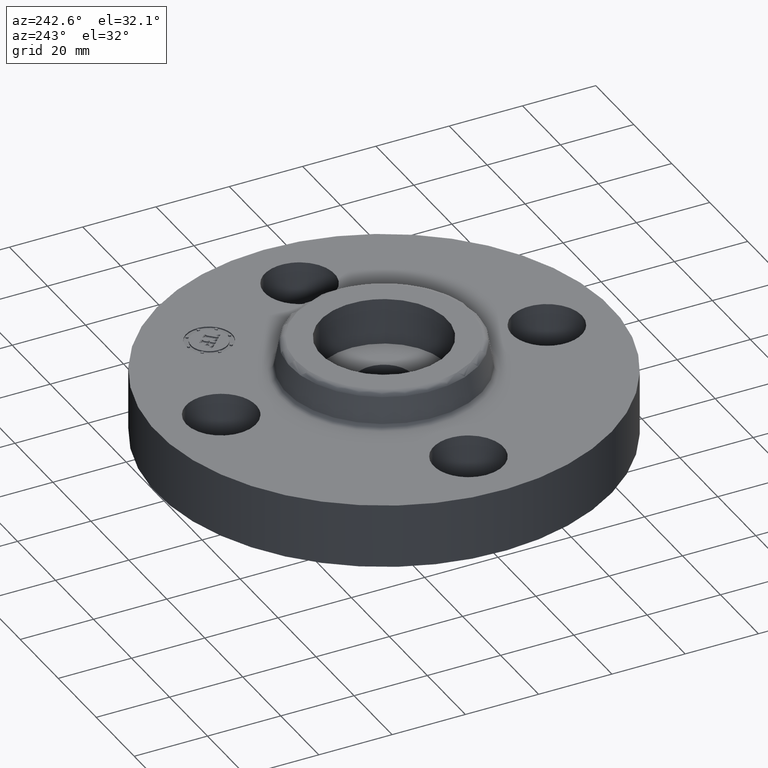
[diagram: clean part render]
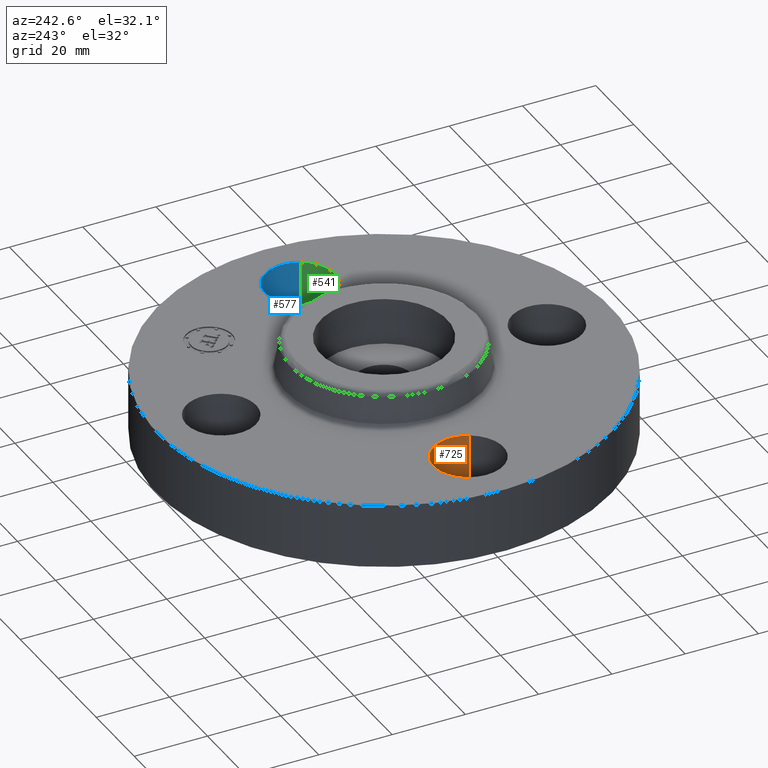
[diagram: same view with three faces highlighted in distinct colors, each labeled with its STEP entity id]
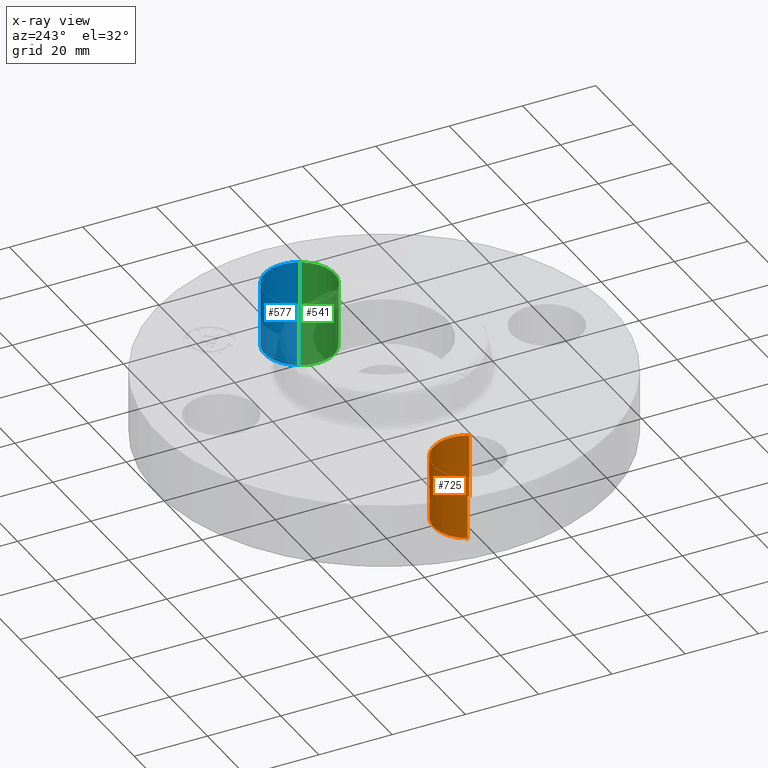
[diagram: x-ray of the same camera — body ghosted, the three highlighted faces saturated]
A machine part, auxiliary view with three faces highlighted in distinct colors.
The next image is the same camera in x-ray (body ghosted, the three faces saturated) — at least one of them is partly hidden behind the body in this view.
Their STEP definitions:

[orange] entity #725 — the highlighted cylindrical surface (partial cylindrical patch) has radius 9.525 mm, axis along (0, -0, -1).
#342=AXIS2_PLACEMENT_3D('Circle Axis2P3D',#340,#341,$) ;
#700=AXIS2_PLACEMENT_3D('Cylinder Axis2P3D',#697,#698,#699) ;
#335=CARTESIAN_POINT('Vertex',(-1.42090653927,-0.179784576983,0.)) ;
#337=CARTESIAN_POINT('Vertex',(-2.07909346074,0.179784576964,0.)) ;
#340=CARTESIAN_POINT('Axis2P3D Location',(-1.75000000001,-2.22543593352E-011,0.)) ;
#664=CARTESIAN_POINT('Line Origine',(-1.4209065393,-0.179784576978,0.344999999978)) ;
#668=CARTESIAN_POINT('Vertex',(-1.42090653927,-0.179784576955,0.690000000003)) ;
#671=CARTESIAN_POINT('Line Origine',(-2.07909346072,0.179784576978,0.344999999978)) ;
#675=CARTESIAN_POINT('Vertex',(-2.07909346072,0.179784576978,0.689999999988)) ;
#697=CARTESIAN_POINT('Axis2P3D Location',(-1.75000000001,-2.14313189852E-016,0.686062992129)) ;
#703=CARTESIAN_POINT('Control Point',(-2.07909346072,0.179784576978,0.690000000003)) ;
#704=CARTESIAN_POINT('Control Point',(-2.05085296541,0.231478456903,0.690000000002)) ;
#705=CARTESIAN_POINT('Control Point',(-2.01246240051,0.277627328541,0.690000000002)) ;
#706=CARTESIAN_POINT('Control Point',(-1.96536533168,0.315564920646,0.690000000001)) ;
#707=CARTESIAN_POINT('Control Point',(-1.85883359426,0.370929207244,0.689999999999)) ;
#708=CARTESIAN_POINT('Control Point',(-1.73927677655,0.381901109851,0.689999999998)) ;
#709=CARTESIAN_POINT('Control Point',(-1.67914819117,0.375424381749,0.689999999997)) ;
#710=CARTESIAN_POINT('Control Point',(-1.56467041474,0.339243530299,0.689999999996)) ;
#711=CARTESIAN_POINT('Control Point',(-1.47237267147,0.262462400496,0.689999999994)) ;
#712=CARTESIAN_POINT('Control Point',(-1.43443507936,0.215365331668,0.689999999993)) ;
#713=CARTESIAN_POINT('Control Point',(-1.37907079277,0.108833594252,0.689999999992)) ;
#714=CARTESIAN_POINT('Control Point',(-1.36809889016,-0.0107232234563,0.689999999991)) ;
#715=CARTESIAN_POINT('Control Point',(-1.37457561826,-0.070851808838,0.68999999999)) ;
#716=CARTESIAN_POINT('Control Point',(-1.39266604399,-0.128090697052,0.689999999989)) ;
#717=CARTESIAN_POINT('Control Point',(-1.4209065393,-0.179784576977,0.689999999988)) ;
#341=DIRECTION('Axis2P3D Direction',(0.,0.,-0.0393700787402)) ;
#665=DIRECTION('Vector Direction',(0.,0.,-0.0393700787402)) ;
#672=DIRECTION('Vector Direction',(0.,0.,-0.0393700787402)) ;
#698=DIRECTION('Axis2P3D Direction',(0.,-0.,-0.0393700787402)) ;
#699=DIRECTION('Axis2P3D XDirection',(-0.0345504945626,0.0188750212049,0.)) ;
#666=VECTOR('Line Direction',#665,0.0393700787402) ;
#673=VECTOR('Line Direction',#672,0.0393700787402) ;
#720=ORIENTED_EDGE('',*,*,#677,.F.) ;
#721=ORIENTED_EDGE('',*,*,#344,.T.) ;
#722=ORIENTED_EDGE('',*,*,#670,.T.) ;
#723=ORIENTED_EDGE('',*,*,#718,.F.) ;
#725=ADVANCED_FACE('PartBody',(#724),#701,.F.) ;
#702=B_SPLINE_CURVE_WITH_KNOTS('',5,(#703,#704,#705,#706,#707,#708,#709,#710,#711,#712,#713,#714,#715,#716,#717),.UNSPECIFIED.,.F.,.U.,(6,3,3,3,6),(-14.9618350128,-7.4809175064,0.,7.4809175064,14.9618350128),.UNSPECIFIED.) ;
#343=CIRCLE('generated circle',#342,0.375000000021) ;
#701=CYLINDRICAL_SURFACE('generated cylinder',#700,0.375000000002) ;
#344=EDGE_CURVE('',#338,#336,#343,.T.) ;
#670=EDGE_CURVE('',#336,#669,#667,.F.) ;
#677=EDGE_CURVE('',#338,#676,#674,.F.) ;
#718=EDGE_CURVE('',#676,#669,#702,.T.) ;
#719=EDGE_LOOP('',(#720,#721,#722,#723)) ;
#724=FACE_OUTER_BOUND('',#719,.T.) ;
#667=LINE('Line',#664,#666) ;
#674=LINE('Line',#671,#673) ;
#336=VERTEX_POINT('',#335) ;
#338=VERTEX_POINT('',#337) ;
#669=VERTEX_POINT('',#668) ;
#676=VERTEX_POINT('',#675) ;

[blue] entity #577 — the highlighted cylindrical surface (partial cylindrical patch) has radius 9.525 mm, axis along (0, -0, -1).
#302=AXIS2_PLACEMENT_3D('Circle Axis2P3D',#300,#301,$) ;
#552=AXIS2_PLACEMENT_3D('Cylinder Axis2P3D',#549,#550,#551) ;
#295=CARTESIAN_POINT('Vertex',(2.07909346074,-0.179784576983,0.)) ;
#297=CARTESIAN_POINT('Vertex',(1.42090653927,0.179784576964,0.)) ;
#300=CARTESIAN_POINT('Axis2P3D Location',(1.75,-2.22543593352E-011,0.)) ;
#516=CARTESIAN_POINT('Line Origine',(2.07909346072,-0.179784576977,0.344999999978)) ;
#520=CARTESIAN_POINT('Vertex',(2.07909346074,-0.179784576955,0.690000000003)) ;
#523=CARTESIAN_POINT('Line Origine',(1.4209065393,0.179784576977,0.344999999978)) ;
#527=CARTESIAN_POINT('Vertex',(1.4209065393,0.179784576977,0.689999999988)) ;
#549=CARTESIAN_POINT('Axis2P3D Location',(1.75000000001,0.,0.686062992129)) ;
#555=CARTESIAN_POINT('Control Point',(1.4209065393,0.179784576977,0.690000000003)) ;
#556=CARTESIAN_POINT('Control Point',(1.44914703461,0.231478456903,0.690000000002)) ;
#557=CARTESIAN_POINT('Control Point',(1.48753759951,0.27762732854,0.690000000002)) ;
#558=CARTESIAN_POINT('Control Point',(1.53463466834,0.315564920645,0.690000000001)) ;
#559=CARTESIAN_POINT('Control Point',(1.64116640576,0.370929207243,0.689999999999)) ;
#560=CARTESIAN_POINT('Control Point',(1.76072322347,0.38190110985,0.689999999998)) ;
#561=CARTESIAN_POINT('Control Point',(1.82085180885,0.375424381748,0.689999999997)) ;
#562=CARTESIAN_POINT('Control Point',(1.93532958528,0.339243530298,0.689999999996)) ;
#563=CARTESIAN_POINT('Control Point',(2.02762732855,0.262462400496,0.689999999994)) ;
#564=CARTESIAN_POINT('Control Point',(2.06556492066,0.215365331668,0.689999999993)) ;
#565=CARTESIAN_POINT('Control Point',(2.12092920725,0.108833594252,0.689999999992)) ;
#566=CARTESIAN_POINT('Control Point',(2.13190110986,-0.0107232234562,0.689999999991)) ;
#567=CARTESIAN_POINT('Control Point',(2.12542438176,-0.0708518088378,0.68999999999)) ;
#568=CARTESIAN_POINT('Control Point',(2.10733395603,-0.128090697051,0.689999999989)) ;
#569=CARTESIAN_POINT('Control Point',(2.07909346072,-0.179784576977,0.689999999988)) ;
#301=DIRECTION('Axis2P3D Direction',(0.,0.,-0.0393700787402)) ;
#517=DIRECTION('Vector Direction',(0.,0.,-0.0393700787402)) ;
#524=DIRECTION('Vector Direction',(0.,0.,-0.0393700787402)) ;
#550=DIRECTION('Axis2P3D Direction',(0.,-0.,-0.0393700787402)) ;
#551=DIRECTION('Axis2P3D XDirection',(-0.0345504945626,0.0188750212049,0.)) ;
#518=VECTOR('Line Direction',#517,0.0393700787402) ;
#525=VECTOR('Line Direction',#524,0.0393700787402) ;
#572=ORIENTED_EDGE('',*,*,#529,.F.) ;
#573=ORIENTED_EDGE('',*,*,#304,.T.) ;
#574=ORIENTED_EDGE('',*,*,#522,.T.) ;
#575=ORIENTED_EDGE('',*,*,#570,.F.) ;
#577=ADVANCED_FACE('PartBody',(#576),#553,.F.) ;
#554=B_SPLINE_CURVE_WITH_KNOTS('',5,(#555,#556,#557,#558,#559,#560,#561,#562,#563,#564,#565,#566,#567,#568,#569),.UNSPECIFIED.,.F.,.U.,(6,3,3,3,6),(-14.9618350128,-7.48091750638,0.,7.48091750638,14.9618350128),.UNSPECIFIED.) ;
#303=CIRCLE('generated circle',#302,0.375000000021) ;
#553=CYLINDRICAL_SURFACE('generated cylinder',#552,0.375000000001) ;
#304=EDGE_CURVE('',#298,#296,#303,.T.) ;
#522=EDGE_CURVE('',#296,#521,#519,.F.) ;
#529=EDGE_CURVE('',#298,#528,#526,.F.) ;
#570=EDGE_CURVE('',#528,#521,#554,.T.) ;
#571=EDGE_LOOP('',(#572,#573,#574,#575)) ;
#576=FACE_OUTER_BOUND('',#571,.T.) ;
#519=LINE('Line',#516,#518) ;
#526=LINE('Line',#523,#525) ;
#296=VERTEX_POINT('',#295) ;
#298=VERTEX_POINT('',#297) ;
#521=VERTEX_POINT('',#520) ;
#528=VERTEX_POINT('',#527) ;

[green] entity #541 — the highlighted cylindrical surface (partial cylindrical patch) has radius 9.525 mm, axis along (0, -0, -1).
#293=AXIS2_PLACEMENT_3D('Circle Axis2P3D',#291,#292,$) ;
#514=AXIS2_PLACEMENT_3D('Cylinder Axis2P3D',#511,#512,#513) ;
#532=AXIS2_PLACEMENT_3D('Circle Axis2P3D',#530,#531,$) ;
#291=CARTESIAN_POINT('Axis2P3D Location',(1.75000000001,3.36937826721E-012,0.)) ;
#295=CARTESIAN_POINT('Vertex',(2.07909346074,-0.179784576983,0.)) ;
#297=CARTESIAN_POINT('Vertex',(1.42090653927,0.179784576964,0.)) ;
#511=CARTESIAN_POINT('Axis2P3D Location',(1.75000000001,0.,0.686062992129)) ;
#516=CARTESIAN_POINT('Line Origine',(2.07909346072,-0.179784576977,0.344999999978)) ;
#520=CARTESIAN_POINT('Vertex',(2.07909346074,-0.179784576955,0.690000000003)) ;
#523=CARTESIAN_POINT('Line Origine',(1.4209065393,0.179784576977,0.344999999978)) ;
#527=CARTESIAN_POINT('Vertex',(1.4209065393,0.179784576977,0.689999999988)) ;
#530=CARTESIAN_POINT('Axis2P3D Location',(1.75000000001,0.,0.689999999988)) ;
#292=DIRECTION('Axis2P3D Direction',(0.,0.,-0.0393700787402)) ;
#512=DIRECTION('Axis2P3D Direction',(0.,-0.,-0.0393700787402)) ;
#513=DIRECTION('Axis2P3D XDirection',(0.0345504945626,-0.0188750212049,0.)) ;
#517=DIRECTION('Vector Direction',(0.,0.,-0.0393700787402)) ;
#524=DIRECTION('Vector Direction',(0.,0.,-0.0393700787402)) ;
#531=DIRECTION('Axis2P3D Direction',(0.,-0.,-0.0393700787402)) ;
#518=VECTOR('Line Direction',#517,0.0393700787402) ;
#525=VECTOR('Line Direction',#524,0.0393700787402) ;
#536=ORIENTED_EDGE('',*,*,#522,.F.) ;
#537=ORIENTED_EDGE('',*,*,#299,.T.) ;
#538=ORIENTED_EDGE('',*,*,#529,.T.) ;
#539=ORIENTED_EDGE('',*,*,#534,.F.) ;
#541=ADVANCED_FACE('PartBody',(#540),#515,.F.) ;
#294=CIRCLE('generated circle',#293,0.375000000021) ;
#533=CIRCLE('generated circle',#532,0.375000000001) ;
#515=CYLINDRICAL_SURFACE('generated cylinder',#514,0.375000000001) ;
#299=EDGE_CURVE('',#296,#298,#294,.T.) ;
#522=EDGE_CURVE('',#296,#521,#519,.F.) ;
#529=EDGE_CURVE('',#298,#528,#526,.F.) ;
#534=EDGE_CURVE('',#521,#528,#533,.T.) ;
#535=EDGE_LOOP('',(#536,#537,#538,#539)) ;
#540=FACE_OUTER_BOUND('',#535,.T.) ;
#519=LINE('Line',#516,#518) ;
#526=LINE('Line',#523,#525) ;
#296=VERTEX_POINT('',#295) ;
#298=VERTEX_POINT('',#297) ;
#521=VERTEX_POINT('',#520) ;
#528=VERTEX_POINT('',#527) ;